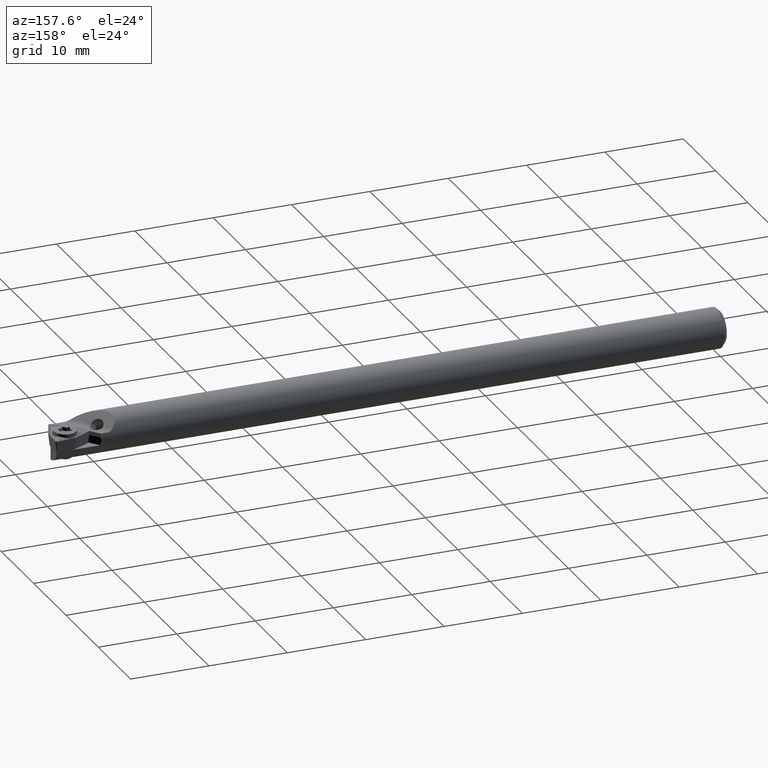
[diagram: clean part render]
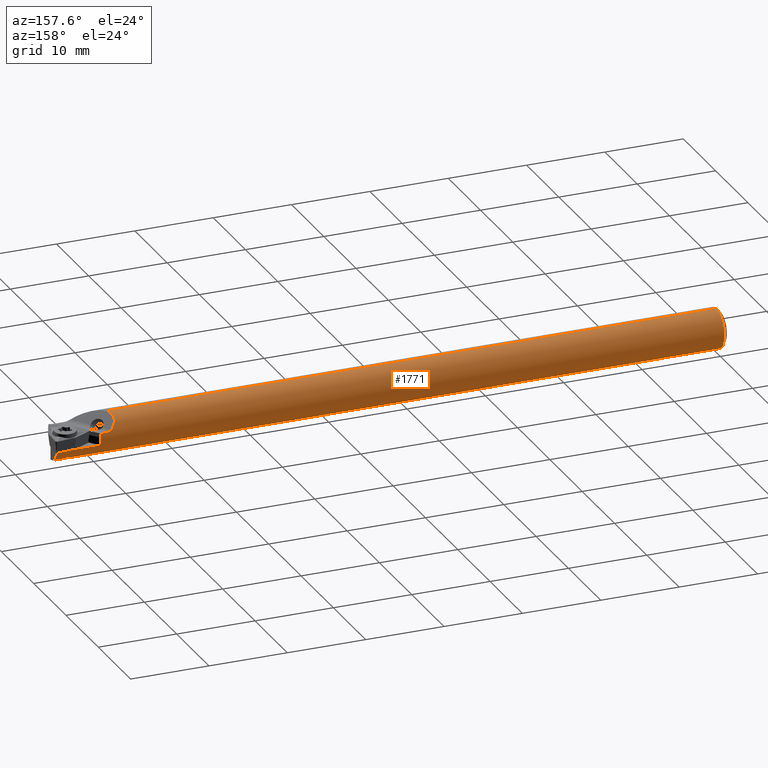
[diagram: same view with one face highlighted and labeled with its STEP entity id]
A machine part, auxiliary view. The second image highlights one B-rep face of the part: STEP entity #1771.
In plain terms, the highlighted cylindrical surface (edge-blend (fillet) strip) has radius 2.5 mm, axis along (-1, -0, -0).
Its self-contained STEP definition (entity closure, byte-faithful):
#23 = CARTESIAN_POINT ( 'NONE',  ( 84.05605004267432900, 1.302774676654976400, -2.134264078967000000 ) ) ;
#58 = ORIENTED_EDGE ( 'NONE', *, *, #1013, .T. ) ;
#120 = VERTEX_POINT ( 'NONE', #1537 ) ;
#143 = CARTESIAN_POINT ( 'NONE',  ( 83.03791320294107000, 0.5259195124814167700, -2.444055782176683500 ) ) ;
#159 = CIRCLE ( 'NONE', #1791, 2.499999999999988000 ) ;
#165 = EDGE_CURVE ( 'NONE', #1851, #460, #159, .T. ) ;
#175 = CARTESIAN_POINT ( 'NONE',  ( -13.10767084393626900, 2.402894088385911800, -0.6899999999999999500 ) ) ;
#219 = VECTOR ( 'NONE', #1897, 1000.000000000000000 ) ;
#222 = B_SPLINE_CURVE_WITH_KNOTS ( 'NONE', 3,
 ( #2605, #2301, #1458, #3480, #1748, #23, #2038, #315, #2316, #601, #2619, #900, #2908, #1175 ),
 .UNSPECIFIED., .F., .F.,
 ( 4, 2, 2, 2, 2, 2, 4 ),
 ( 0.001934142616535236700, 0.002582433303010616500, 0.002906578646248306500, 0.003230723989485997100, 0.003554869332723686700, 0.003879014675961377200, 0.004527305362436757400 ),
 .UNSPECIFIED. ) ;
#267 = CARTESIAN_POINT ( 'NONE',  ( -13.10767084393626900, 2.368543856465394400, 0.8000000000000000400 ) ) ;
#295 = ORIENTED_EDGE ( 'NONE', *, *, #165, .F. ) ;
#315 = CARTESIAN_POINT ( 'NONE',  ( 83.73038929309822700, 1.326118767155738400, -2.119294474911962700 ) ) ;
#419 = CARTESIAN_POINT ( 'NONE',  ( 80.04610265626953900, 2.522804400713968900, -0.02541195199157170500 ) ) ;
#426 = DIRECTION ( 'NONE',  ( -1.000000000000000000, -0.0000000000000000000, -0.0000000000000000000 ) ) ;
#460 = VERTEX_POINT ( 'NONE', #2802 ) ;
#524 = CARTESIAN_POINT ( 'NONE',  ( 77.77533358399482200, 1.858327576004880100, 1.953408951881715300 ) ) ;
#527 = EDGE_CURVE ( 'NONE', #1214, #3356, #2168, .T. ) ;
#528 =( BOUNDED_CURVE ( )  B_SPLINE_CURVE ( 3, ( #1563, #2408, #419, #2424 ),
 .UNSPECIFIED., .F., .F. ) 
 B_SPLINE_CURVE_WITH_KNOTS ( ( 4, 4 ),
 ( 6.003555347904964800, 6.408045167329020400 ),
 .UNSPECIFIED. ) 
 CURVE ( )  GEOMETRIC_REPRESENTATION_ITEM ( )  RATIONAL_B_SPLINE_CURVE ( ( 1.000000000000000000, 0.9864120759502181800, 0.9864120759502181800, 1.000000000000000000 ) ) 
 REPRESENTATION_ITEM ( '' )  );
#597 = VERTEX_POINT ( 'NONE', #1140 ) ;
#601 = CARTESIAN_POINT ( 'NONE',  ( 83.42669281606559700, 1.220283107531289900, -2.182482199439202300 ) ) ;
#623 = CARTESIAN_POINT ( 'NONE',  ( 80.06811009578102300, 2.459656502933606600, 0.4777072880876369100 ) ) ;
#657 = CARTESIAN_POINT ( 'NONE',  ( 83.03791320294107000, 0.5259195124814167700, -2.444055782176683500 ) ) ;
#693 = CARTESIAN_POINT ( 'NONE',  ( 85.51269560535399700, 0.07149786166163109300, -2.499999999999992900 ) ) ;
#720 = CARTESIAN_POINT ( 'NONE',  ( 83.05467664453456700, 0.3368647014197599400, -2.478847369103046800 ) ) ;
#767 = CARTESIAN_POINT ( 'NONE',  ( 85.57325421867639600, 0.2141650141280954900, -2.490809777306064900 ) ) ;
#780 = VERTEX_POINT ( 'NONE', #3453 ) ;
#817 = CARTESIAN_POINT ( 'NONE',  ( 77.73052844992487600, 1.009548370823227600, 2.499999999999992500 ) ) ;
#847 = CARTESIAN_POINT ( 'NONE',  ( 80.13646155777348700, 2.402894088385912200, -0.6899999999999999500 ) ) ;
#885 = VERTEX_POINT ( 'NONE', #1795 ) ;
#900 = CARTESIAN_POINT ( 'NONE',  ( 83.12378490881101800, 0.9407240381488130000, -2.321936185390947900 ) ) ;
#906 = LINE ( 'NONE', #2781, #3105 ) ;
#916 = CARTESIAN_POINT ( 'NONE',  ( 84.55398074061615400, 0.1564821716974508500, -2.496738502562077900 ) ) ;
#979 = CARTESIAN_POINT ( 'NONE',  ( 78.61142280591204200, 2.276003813669369400, 1.034314575050763000 ) ) ;
#983 = DIRECTION ( 'NONE',  ( -1.000000000000000000, -0.0000000000000000000, -0.0000000000000000000 ) ) ;
#991 = ORIENTED_EDGE ( 'NONE', *, *, #527, .F. ) ;
#1006 = CARTESIAN_POINT ( 'NONE',  ( 83.17129250281865900, 0.07311549488693880300, -2.499999999999993300 ) ) ;
#1013 = EDGE_CURVE ( 'NONE', #1214, #2322, #2952, .T. ) ;
#1055 = ORIENTED_EDGE ( 'NONE', *, *, #2209, .T. ) ;
#1083 = VERTEX_POINT ( 'NONE', #2665 ) ;
#1098 = EDGE_LOOP ( 'NONE', ( #2717, #3214, #1055, #2947, #2035, #1979, #295, #2840, #991, #58, #3361, #2378, #1336, #1866, #2349 ) ) ;
#1099 = CARTESIAN_POINT ( 'NONE',  ( 78.49127771353396100, 0.0000000000000000000, 2.499999999999992900 ) ) ;
#1140 = CARTESIAN_POINT ( 'NONE',  ( 83.23507933993127500, -3.240022594917346800E-015, -2.499999999999992900 ) ) ;
#1161 = FACE_OUTER_BOUND ( 'NONE', #1098, .T. ) ;
#1166 = EDGE_CURVE ( 'NONE', #2531, #597, #3223, .T. ) ;
#1170 = EDGE_CURVE ( 'NONE', #597, #460, #2155, .T. ) ;
#1175 = CARTESIAN_POINT ( 'NONE',  ( 83.03791320294107000, 0.5259195124814167700, -2.444055782176683500 ) ) ;
#1193 =( BOUNDED_CURVE ( )  B_SPLINE_CURVE ( 3, ( #3574, #1546, #693, #2711 ),
 .UNSPECIFIED., .F., .F. ) 
 B_SPLINE_CURVE_WITH_KNOTS ( ( 4, 4 ),
 ( 4.626617848179472900, 4.712388980384689700 ),
 .UNSPECIFIED. ) 
 CURVE ( )  GEOMETRIC_REPRESENTATION_ITEM ( )  RATIONAL_B_SPLINE_CURVE ( ( 1.000000000000000000, 0.9993870366940604800, 0.9993870366940604800, 1.000000000000000000 ) ) 
 REPRESENTATION_ITEM ( '' )  );
#1194 = CARTESIAN_POINT ( 'NONE',  ( 84.63791320294107800, 0.4318282894507237100, -2.464302623720132000 ) ) ;
#1214 = VERTEX_POINT ( 'NONE', #2836 ) ;
#1271 = VERTEX_POINT ( 'NONE', #3129 ) ;
#1312 = CARTESIAN_POINT ( 'NONE',  ( -13.10767084393626900, 0.0000000000000000000, 0.0000000000000000000 ) ) ;
#1314 = VERTEX_POINT ( 'NONE', #847 ) ;
#1336 = ORIENTED_EDGE ( 'NONE', *, *, #2599, .F. ) ;
#1390 = CARTESIAN_POINT ( 'NONE',  ( 85.68796064891044800, 2.402894088385917600, -0.6899999999999999500 ) ) ;
#1458 = CARTESIAN_POINT ( 'NONE',  ( 84.55169167340858400, 0.9410560279664936800, -2.321772211466165600 ) ) ;
#1485 = CARTESIAN_POINT ( 'NONE',  ( 80.07120896258123800, 2.422199341076039000, 0.6411432894497334200 ) ) ;
#1514 = B_SPLINE_CURVE_WITH_KNOTS ( 'NONE', 3,
 ( #2336, #2636, #916, #2923, #1194, #3209 ),
 .UNSPECIFIED., .F., .F.,
 ( 4, 2, 4 ),
 ( 0.001359233790473800400, 0.001646688203504518700, 0.001934142616535236700 ),
 .UNSPECIFIED. ) ;
#1537 = CARTESIAN_POINT ( 'NONE',  ( 84.44074706595085900, 2.306840888391100100E-017, -2.499999999999992900 ) ) ;
#1546 = CARTESIAN_POINT ( 'NONE',  ( 85.54301674276882700, 0.1429299849747841200, -2.496934713527219500 ) ) ;
#1558 = CARTESIAN_POINT ( 'NONE',  ( 79.01242380465087900, 2.363147640534671600, 0.8167721816205844000 ) ) ;
#1563 = CARTESIAN_POINT ( 'NONE',  ( 80.13646155777348700, 2.402894088385912200, -0.6899999999999999500 ) ) ;
#1579 = VECTOR ( 'NONE', #2680, 1000.000000000000000 ) ;
#1652 = VERTEX_POINT ( 'NONE', #3051 ) ;
#1691 = VERTEX_POINT ( 'NONE', #767 ) ;
#1748 = CARTESIAN_POINT ( 'NONE',  ( 84.24964085915094400, 1.219870493505203400, -2.182709553737671700 ) ) ;
#1771 = ADVANCED_FACE ( 'NONE', ( #1161 ), #2613, .T. ) ;
#1791 = AXIS2_PLACEMENT_3D ( 'NONE', #2713, #983, #2998 ) ;
#1795 = CARTESIAN_POINT ( 'NONE',  ( 85.48234656366578600, 3.061616997868373800E-016, -2.499999999999992900 ) ) ;
#1851 = VERTEX_POINT ( 'NONE', #3636 ) ;
#1854 = CARTESIAN_POINT ( 'NONE',  ( 79.25000377374476600, 2.368543856465394400, 0.8000000000000000400 ) ) ;
#1866 = ORIENTED_EDGE ( 'NONE', *, *, #2449, .F. ) ;
#1868 = CARTESIAN_POINT ( 'NONE',  ( 83.03791320294104100, 0.4319691171121775000, -2.464272319986647200 ) ) ;
#1897 = DIRECTION ( 'NONE',  ( -1.000000000000000000, -0.0000000000000000000, -0.0000000000000000000 ) ) ;
#1937 = LINE ( 'NONE', #267, #2706 ) ;
#1946 = EDGE_CURVE ( 'NONE', #885, #120, #906, .T. ) ;
#1965 = CARTESIAN_POINT ( 'NONE',  ( 85.57325421867639600, 0.2141650141280954900, -2.490809777306064900 ) ) ;
#1979 = ORIENTED_EDGE ( 'NONE', *, *, #1170, .T. ) ;
#1987 = DIRECTION ( 'NONE',  ( 1.000000000000000000, 0.0000000000000000000, 0.0000000000000000000 ) ) ;
#2029 = AXIS2_PLACEMENT_3D ( 'NONE', #1312, #3330, #2746 ) ;
#2035 = ORIENTED_EDGE ( 'NONE', *, *, #1166, .T. ) ;
#2038 = CARTESIAN_POINT ( 'NONE',  ( 83.94838193632270400, 1.325717547809266400, -2.119545479442611000 ) ) ;
#2118 = CARTESIAN_POINT ( 'NONE',  ( 78.49127771353396100, 0.0000000000000000000, 2.499999999999992900 ) ) ;
#2155 = LINE ( 'NONE', #2435, #3693 ) ;
#2168 =( BOUNDED_CURVE ( )  B_SPLINE_CURVE ( 3, ( #2829, #524, #817, #1099 ),
 .UNSPECIFIED., .F., .T. ) 
 B_SPLINE_CURVE_WITH_KNOTS ( ( 4, 4 ),
 ( 5.680684775814366800, 6.824938314706452400 ),
 .UNSPECIFIED. ) 
 CURVE ( )  GEOMETRIC_REPRESENTATION_ITEM ( )  RATIONAL_B_SPLINE_CURVE ( ( 1.000000000000000000, 0.8938342660355621500, 0.8938342660355621500, 1.000000000000000000 ) ) 
 REPRESENTATION_ITEM ( '' )  );
#2209 = EDGE_CURVE ( 'NONE', #120, #1652, #1514, .T. ) ;
#2249 =( BOUNDED_CURVE ( )  B_SPLINE_CURVE ( 3, ( #3505, #1485, #623, #2647 ),
 .UNSPECIFIED., .F., .T. ) 
 B_SPLINE_CURVE_WITH_KNOTS ( ( 4, 4 ),
 ( 6.158717364258998300, 6.359586991404195400 ),
 .UNSPECIFIED. ) 
 CURVE ( )  GEOMETRIC_REPRESENTATION_ITEM ( )  RATIONAL_B_SPLINE_CURVE ( ( 1.000000000000000000, 0.9966404415304532800, 0.9966404415304532800, 1.000000000000000000 ) ) 
 REPRESENTATION_ITEM ( '' )  );
#2301 = CARTESIAN_POINT ( 'NONE',  ( 84.63791320294109300, 0.7381217289189659900, -2.398393450314142900 ) ) ;
#2316 = CARTESIAN_POINT ( 'NONE',  ( 83.62177744054163500, 1.303433718734012400, -2.133865027189495700 ) ) ;
#2322 = VERTEX_POINT ( 'NONE', #2986 ) ;
#2325 = LINE ( 'NONE', #3539, #1579 ) ;
#2336 = CARTESIAN_POINT ( 'NONE',  ( 84.44074706595085900, 2.306840888391100100E-017, -2.499999999999992900 ) ) ;
#2349 = ORIENTED_EDGE ( 'NONE', *, *, #2851, .T. ) ;
#2378 = ORIENTED_EDGE ( 'NONE', *, *, #3063, .T. ) ;
#2408 = CARTESIAN_POINT ( 'NONE',  ( 80.06587422789368700, 2.496566638974858400, -0.3637895390518709500 ) ) ;
#2424 = CARTESIAN_POINT ( 'NONE',  ( 80.07795280674174900, 2.480537823461996400, 0.3113392143215260000 ) ) ;
#2435 = CARTESIAN_POINT ( 'NONE',  ( -13.10767084393626900, 3.061616997868373800E-016, -2.499999999999992900 ) ) ;
#2449 = EDGE_CURVE ( 'NONE', #780, #1314, #2514, .T. ) ;
#2514 = LINE ( 'NONE', #175, #219 ) ;
#2525 = EDGE_CURVE ( 'NONE', #3356, #1851, #2325, .T. ) ;
#2531 = VERTEX_POINT ( 'NONE', #657 ) ;
#2591 = EDGE_CURVE ( 'NONE', #1691, #885, #1193, .T. ) ;
#2599 = EDGE_CURVE ( 'NONE', #1314, #1271, #528, .T. ) ;
#2605 = CARTESIAN_POINT ( 'NONE',  ( 84.63791320294109300, 0.5259195124814171100, -2.444055782176689700 ) ) ;
#2613 = CYLINDRICAL_SURFACE ( 'NONE', #2029, 2.499999999999992900 ) ;
#2619 = CARTESIAN_POINT ( 'NONE',  ( 83.33945733648624800, 1.159995417199930300, -2.216077158701801800 ) ) ;
#2636 = CARTESIAN_POINT ( 'NONE',  ( 84.50440403087442600, 0.07296662923058026800, -2.499999999999992900 ) ) ;
#2647 = CARTESIAN_POINT ( 'NONE',  ( 80.07795280674174900, 2.480537823461996400, 0.3113392143215260000 ) ) ;
#2665 = CARTESIAN_POINT ( 'NONE',  ( 80.08721817466980000, 2.368543856465384700, 0.8000000000000000400 ) ) ;
#2680 = DIRECTION ( 'NONE',  ( -1.000000000000000000, -0.0000000000000000000, -0.0000000000000000000 ) ) ;
#2706 = VECTOR ( 'NONE', #1987, 1000.000000000000000 ) ;
#2711 = CARTESIAN_POINT ( 'NONE',  ( 85.48234656366578600, 3.061616997868373800E-016, -2.499999999999992900 ) ) ;
#2713 = CARTESIAN_POINT ( 'NONE',  ( 0.5000000000000004400, 0.0000000000000000000, 0.0000000000000000000 ) ) ;
#2717 = ORIENTED_EDGE ( 'NONE', *, *, #2591, .T. ) ;
#2730 = CARTESIAN_POINT ( 'NONE',  ( 83.12157271844826300, 0.1570597311462440200, -2.496696687069533300 ) ) ;
#2746 = DIRECTION ( 'NONE',  ( 0.0000000000000000000, 0.0000000000000000000, 1.000000000000000000 ) ) ;
#2781 = CARTESIAN_POINT ( 'NONE',  ( -13.10767084393626900, 3.061616997868373800E-016, -2.499999999999992900 ) ) ;
#2802 = CARTESIAN_POINT ( 'NONE',  ( 0.5000000000000004400, 3.061616997868370800E-016, -2.499999999999988000 ) ) ;
#2829 = CARTESIAN_POINT ( 'NONE',  ( 78.61142280591204200, 2.276003813669369400, 1.034314575050763000 ) ) ;
#2836 = CARTESIAN_POINT ( 'NONE',  ( 78.61142280591204200, 2.276003813669369400, 1.034314575050763000 ) ) ;
#2840 = ORIENTED_EDGE ( 'NONE', *, *, #2525, .F. ) ;
#2851 = EDGE_CURVE ( 'NONE', #780, #1691, #2928, .T. ) ;
#2908 = CARTESIAN_POINT ( 'NONE',  ( 83.03791320294104100, 0.7382086295895468100, -2.398374750758007800 ) ) ;
#2923 = CARTESIAN_POINT ( 'NONE',  ( 84.62110728186404200, 0.3365951822500907700, -2.478889570658827900 ) ) ;
#2928 =( BOUNDED_CURVE ( )  B_SPLINE_CURVE ( 3, ( #1390, #3111, #3701, #1965 ),
 .UNSPECIFIED., .F., .F. ) 
 B_SPLINE_CURVE_WITH_KNOTS ( ( 4, 4 ),
 ( 3.421222612864415000, 4.626617848179471100 ),
 .UNSPECIFIED. ) 
 CURVE ( )  GEOMETRIC_REPRESENTATION_ITEM ( )  RATIONAL_B_SPLINE_CURVE ( ( 1.000000000000000000, 0.8825396161404379700, 0.8825396161404379700, 1.000000000000000000 ) ) 
 REPRESENTATION_ITEM ( '' )  );
#2947 = ORIENTED_EDGE ( 'NONE', *, *, #3175, .T. ) ;
#2952 = B_SPLINE_CURVE_WITH_KNOTS ( 'NONE', 3,
 ( #979, #2988, #3288, #1558, #3585, #1854 ),
 .UNSPECIFIED., .F., .F.,
 ( 4, 2, 4 ),
 ( 1.545663197016483500E-017, 0.0003516313849167335100, 0.0007032627698334516100 ),
 .UNSPECIFIED. ) ;
#2986 = CARTESIAN_POINT ( 'NONE',  ( 79.25000377374476600, 2.368543856465394400, 0.8000000000000000400 ) ) ;
#2988 = CARTESIAN_POINT ( 'NONE',  ( 78.68773821571980400, 2.314127894698950100, 0.9504227341070129500 ) ) ;
#2998 = DIRECTION ( 'NONE',  ( 0.0000000000000000000, 0.0000000000000000000, 1.000000000000000000 ) ) ;
#3022 = CARTESIAN_POINT ( 'NONE',  ( 83.23507933993127500, -3.240022594917346800E-015, -2.499999999999992900 ) ) ;
#3051 = CARTESIAN_POINT ( 'NONE',  ( 84.63791320294109300, 0.5259195124814171100, -2.444055782176689700 ) ) ;
#3063 = EDGE_CURVE ( 'NONE', #1083, #1271, #2249, .T. ) ;
#3080 = DIRECTION ( 'NONE',  ( -1.000000000000000000, -0.0000000000000000000, -0.0000000000000000000 ) ) ;
#3105 = VECTOR ( 'NONE', #3080, 1000.000000000000000 ) ;
#3111 = CARTESIAN_POINT ( 'NONE',  ( 85.67247603273406800, 2.107430010567653800, -1.718940414376652900 ) ) ;
#3129 = CARTESIAN_POINT ( 'NONE',  ( 80.07795280674174900, 2.480537823461996400, 0.3113392143215260000 ) ) ;
#3175 = EDGE_CURVE ( 'NONE', #1652, #2531, #222, .T. ) ;
#3209 = CARTESIAN_POINT ( 'NONE',  ( 84.63791320294109300, 0.5259195124814171100, -2.444055782176689700 ) ) ;
#3214 = ORIENTED_EDGE ( 'NONE', *, *, #1946, .T. ) ;
#3223 = B_SPLINE_CURVE_WITH_KNOTS ( 'NONE', 3,
 ( #143, #1868, #720, #2730, #1006, #3022 ),
 .UNSPECIFIED., .F., .F.,
 ( 4, 2, 4 ),
 ( 0.004527305362436757400, 0.004814212044881232400, 0.005101118727325706600 ),
 .UNSPECIFIED. ) ;
#3288 = CARTESIAN_POINT ( 'NONE',  ( 78.79152591410573300, 2.335954876639140000, 0.8915707386066757900 ) ) ;
#3330 = DIRECTION ( 'NONE',  ( -1.000000000000000000, -0.0000000000000000000, -0.0000000000000000000 ) ) ;
#3356 = VERTEX_POINT ( 'NONE', #2118 ) ;
#3361 = ORIENTED_EDGE ( 'NONE', *, *, #3525, .T. ) ;
#3453 = CARTESIAN_POINT ( 'NONE',  ( 85.68796064891044800, 2.402894088385917600, -0.6899999999999999500 ) ) ;
#3480 = CARTESIAN_POINT ( 'NONE',  ( 84.33661227162461700, 1.159759986687799000, -2.216192666648147700 ) ) ;
#3505 = CARTESIAN_POINT ( 'NONE',  ( 80.08721817466980000, 2.368543856465384700, 0.8000000000000000400 ) ) ;
#3525 = EDGE_CURVE ( 'NONE', #2322, #1083, #1937, .T. ) ;
#3539 = CARTESIAN_POINT ( 'NONE',  ( -13.10767084393626900, 0.0000000000000000000, 2.499999999999992900 ) ) ;
#3574 = CARTESIAN_POINT ( 'NONE',  ( 85.57325421867639600, 0.2141650141280954900, -2.490809777306064900 ) ) ;
#3585 = CARTESIAN_POINT ( 'NONE',  ( 79.13126596733567900, 2.368543856465395300, 0.7999999999999996000 ) ) ;
#3636 = CARTESIAN_POINT ( 'NONE',  ( 0.5000000000000004400, 0.0000000000000000000, 2.499999999999988000 ) ) ;
#3693 = VECTOR ( 'NONE', #426, 1000.000000000000000 ) ;
#3701 = CARTESIAN_POINT ( 'NONE',  ( 85.62915165834296300, 1.280751700899748200, -2.399102431798392700 ) ) ;